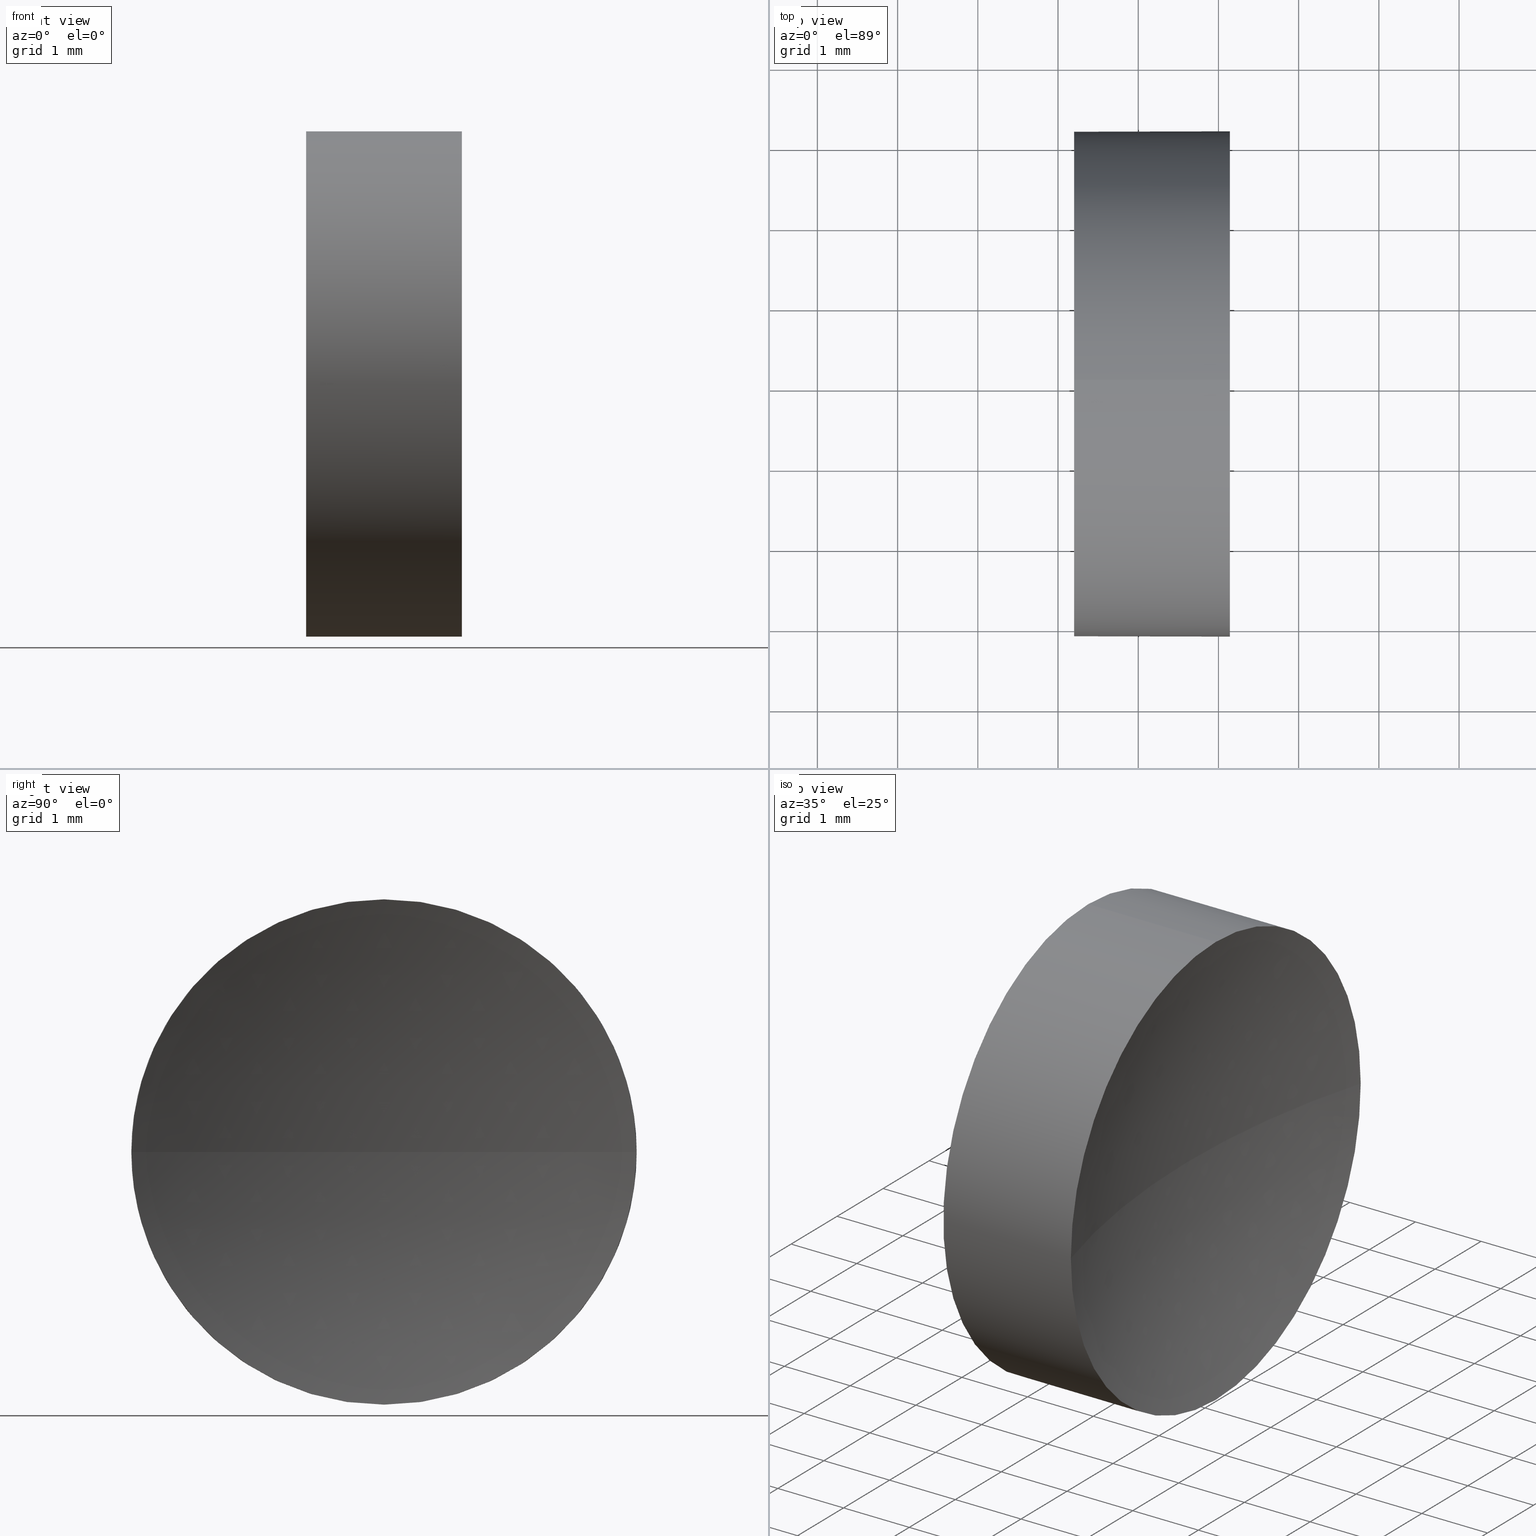
[diagram: canonical four-view strip — front | top / right | iso, engineering-drawing reading convention]
A machine part, canonical four-view strip (front | top / right | iso — engineering-drawing reading convention). The complete STEP part file that produces these views, byte-faithful:
ISO-10303-21;
HEADER;
FILE_DESCRIPTION (( 'STEP AP214' ),
    '1' );
FILE_NAME ('120248.STEP',
    '2019-06-24T06:08:45',
    ( '' ),
    ( '' ),
    'SwSTEP 2.0',
    'SolidWorks 2016',
    '' );
FILE_SCHEMA (( 'AUTOMOTIVE_DESIGN' ));
ENDSEC;

DATA;
#1 = CIRCLE ( 'NONE', #122, 3.149999999999998100 ) ;
#2 = DIRECTION ( 'NONE',  ( 0.0000000000000000000, 0.0000000000000000000, -1.000000000000000000 ) ) ;
#3 = PRODUCT_DEFINITION_CONTEXT ( 'detailed design', #168, 'design' ) ;
#4 = ORIENTED_EDGE ( 'NONE', *, *, #162, .F. ) ;
#5 = DIRECTION ( 'NONE',  ( 0.0000000000000000000, 0.0000000000000000000, 1.000000000000000000 ) ) ;
#6 = AXIS2_PLACEMENT_3D ( 'NONE', #34, #60, #25 ) ;
#7 = DIRECTION ( 'NONE',  ( 0.0000000000000000000, -1.000000000000000000, 0.0000000000000000000 ) ) ;
#8 = UNCERTAINTY_MEASURE_WITH_UNIT (LENGTH_MEASURE( 1.000000000000000100E-005 ), #131, 'distance_accuracy_value', 'NONE');
#9 = VECTOR ( 'NONE', #172, 1000.000000000000000 ) ;
#10 = EDGE_CURVE ( 'NONE', #171, #154, #82, .T. ) ;
#11 = ORIENTED_EDGE ( 'NONE', *, *, #20, .T. ) ;
#12 = EDGE_CURVE ( 'NONE', #88, #78, #30, .T. ) ;
#13 =( NAMED_UNIT ( * ) SI_UNIT ( $, .STERADIAN. ) SOLID_ANGLE_UNIT ( ) );
#14 = ORIENTED_EDGE ( 'NONE', *, *, #37, .T. ) ;
#15 = SURFACE_STYLE_USAGE ( .BOTH. , #115 ) ;
#16 = DIRECTION ( 'NONE',  ( 1.000000000000000000, 0.0000000000000000000, 0.0000000000000000000 ) ) ;
#17 = CARTESIAN_POINT ( 'NONE',  ( 24.14229572597543300, 9.881126091403055900, 0.0000000000000000000 ) ) ;
#18 = DIRECTION ( 'NONE',  ( 0.0000000000000000000, 0.0000000000000000000, 1.000000000000000000 ) ) ;
#19 = DIRECTION ( 'NONE',  ( -1.000000000000000000, -0.0000000000000000000, -0.0000000000000000000 ) ) ;
#20 = EDGE_CURVE ( 'NONE', #55, #78, #56, .T. ) ;
#21 = EDGE_LOOP ( 'NONE', ( #159, #93, #86, #47 ) ) ;
#22 = UNCERTAINTY_MEASURE_WITH_UNIT (LENGTH_MEASURE( 1.000000000000000100E-005 ), #99, 'distance_accuracy_value', 'NONE');
#23 = VERTEX_POINT ( 'NONE', #158 ) ;
#24 = APPLICATION_CONTEXT ( 'automotive_design' ) ;
#25 = DIRECTION ( 'NONE',  ( 0.0000000000000000000, 0.0000000000000000000, 1.000000000000000000 ) ) ;
#26 = DIRECTION ( 'NONE',  ( 0.0000000000000000000, 0.0000000000000000000, 1.000000000000000000 ) ) ;
#27 = CARTESIAN_POINT ( 'NONE',  ( 35.16087548926616100, 13.03112609140305100, 0.0000000000000000000 ) ) ;
#28 =( GEOMETRIC_REPRESENTATION_CONTEXT ( 3 ) GLOBAL_UNCERTAINTY_ASSIGNED_CONTEXT ( ( #111 ) ) GLOBAL_UNIT_ASSIGNED_CONTEXT ( ( #49, #149, #52 ) ) REPRESENTATION_CONTEXT ( 'NONE', 'WORKASPACE' ) );
#29 = DIRECTION ( 'NONE',  ( -1.000000000000000000, -0.0000000000000000000, -0.0000000000000000000 ) ) ;
#30 = CIRCLE ( 'NONE', #45, 11.45999999999999700 ) ;
#31 = CARTESIAN_POINT ( 'NONE',  ( 35.16087548926616100, 13.03112609140305100, 0.0000000000000000000 ) ) ;
#32 = DIRECTION ( 'NONE',  ( -1.000000000000000000, -0.0000000000000000000, -0.0000000000000000000 ) ) ;
#33 = PRESENTATION_STYLE_ASSIGNMENT (( #15 ) ) ;
#34 = CARTESIAN_POINT ( 'NONE',  ( 24.14229572597543000, 13.03112609140304000, 0.0000000000000000000 ) ) ;
#35 = DIRECTION ( 'NONE',  ( 0.0000000000000000000, 0.0000000000000000000, 1.000000000000000000 ) ) ;
#36 = ADVANCED_FACE ( 'NONE', ( #185 ), #180, .F. ) ;
#37 = EDGE_CURVE ( 'NONE', #55, #23, #132, .T. ) ;
#38 = SURFACE_STYLE_FILL_AREA ( #102 ) ;
#39 = STYLED_ITEM ( 'NONE', ( #33 ), #157 ) ;
#40 = AXIS2_PLACEMENT_3D ( 'NONE', #120, #5, #7 ) ;
#41 = ORIENTED_EDGE ( 'NONE', *, *, #10, .F. ) ;
#42 = CARTESIAN_POINT ( 'NONE',  ( 0.0000000000000000000, 0.0000000000000000000, 0.0000000000000000000 ) ) ;
#43 = AXIS2_PLACEMENT_3D ( 'NONE', #91, #65, #94 ) ;
#44 = MANIFOLD_SOLID_BREP ( '��ת1', #126 ) ;
#45 = AXIS2_PLACEMENT_3D ( 'NONE', #31, #2, #76 ) ;
#46 = CARTESIAN_POINT ( 'NONE',  ( 21.15647192244426100, 13.03112609140304000, 3.149999999999998100 ) ) ;
#47 = ORIENTED_EDGE ( 'NONE', *, *, #12, .T. ) ;
#48 = ORIENTED_EDGE ( 'NONE', *, *, #153, .F. ) ;
#49 =( LENGTH_UNIT ( ) NAMED_UNIT ( * ) SI_UNIT ( .MILLI., .METRE. ) );
#50 = CARTESIAN_POINT ( 'NONE',  ( 24.14229572597543000, 13.03112609140304000, 0.0000000000000000000 ) ) ;
#51 =( GEOMETRIC_REPRESENTATION_CONTEXT ( 3 ) GLOBAL_UNCERTAINTY_ASSIGNED_CONTEXT ( ( #22 ) ) GLOBAL_UNIT_ASSIGNED_CONTEXT ( ( #99, #61, #13 ) ) REPRESENTATION_CONTEXT ( 'NONE', 'WORKASPACE' ) );
#52 =( NAMED_UNIT ( * ) SI_UNIT ( $, .STERADIAN. ) SOLID_ANGLE_UNIT ( ) );
#53 = AXIS2_PLACEMENT_3D ( 'NONE', #145, #155, #26 ) ;
#54 = PRODUCT ( '120248', '120248', '', ( #184 ) ) ;
#55 = VERTEX_POINT ( 'NONE', #116 ) ;
#56 = CIRCLE ( 'NONE', #151, 11.45999999999999700 ) ;
#57 = MECHANICAL_DESIGN_GEOMETRIC_PRESENTATION_REPRESENTATION (  '', ( #39 ), #51 ) ;
#58 = AXIS2_PLACEMENT_3D ( 'NONE', #67, #80, #95 ) ;
#59 = DIRECTION ( 'NONE',  ( 0.0000000000000000000, 0.0000000000000000000, 1.000000000000000000 ) ) ;
#60 = DIRECTION ( 'NONE',  ( -1.000000000000000000, -0.0000000000000000000, -0.0000000000000000000 ) ) ;
#61 =( NAMED_UNIT ( * ) PLANE_ANGLE_UNIT ( ) SI_UNIT ( $, .RADIAN. ) );
#62 = CARTESIAN_POINT ( 'NONE',  ( 22.20087548928661300, 13.03112609140304000, 0.0000000000000000000 ) ) ;
#63 = PRESENTATION_LAYER_ASSIGNMENT (  '', '', ( #39 ) ) ;
#64 = EDGE_LOOP ( 'NONE', ( #14, #129, #130, #41, #165 ) ) ;
#65 = DIRECTION ( 'NONE',  ( 0.0000000000000000000, 0.0000000000000000000, 1.000000000000000000 ) ) ;
#66 = DIRECTION ( 'NONE',  ( 0.0000000000000000000, 0.0000000000000000000, 1.000000000000000000 ) ) ;
#67 = CARTESIAN_POINT ( 'NONE',  ( 21.15647192244426100, 13.03112609140304000, 0.0000000000000000000 ) ) ;
#68 = CARTESIAN_POINT ( 'NONE',  ( 23.70087548926616700, 13.03112609140305100, 0.0000000000000000000 ) ) ;
#69 = CYLINDRICAL_SURFACE ( 'NONE', #58, 3.149999999999998100 ) ;
#70 = LINE ( 'NONE', #177, #139 ) ;
#71 = FACE_OUTER_BOUND ( 'NONE', #108, .T. ) ;
#72 = ORIENTED_EDGE ( 'NONE', *, *, #150, .F. ) ;
#73 = FILL_AREA_STYLE ('',( #183 ) ) ;
#74 =( NAMED_UNIT ( * ) PLANE_ANGLE_UNIT ( ) SI_UNIT ( $, .RADIAN. ) );
#75 = DIRECTION ( 'NONE',  ( 0.0000000000000000000, 0.0000000000000000000, 1.000000000000000000 ) ) ;
#76 = DIRECTION ( 'NONE',  ( -1.000000000000000000, 0.0000000000000000000, 0.0000000000000000000 ) ) ;
#77 = FILL_AREA_STYLE_COLOUR ( '', #98 ) ;
#78 = VERTEX_POINT ( 'NONE', #68 ) ;
#79 = ORIENTED_EDGE ( 'NONE', *, *, #10, .T. ) ;
#80 = DIRECTION ( 'NONE',  ( -1.000000000000000000, -0.0000000000000000000, -0.0000000000000000000 ) ) ;
#81 = CYLINDRICAL_SURFACE ( 'NONE', #53, 3.149999999999998100 ) ;
#82 = LINE ( 'NONE', #46, #9 ) ;
#83 = EDGE_LOOP ( 'NONE', ( #124, #11, #118, #72 ) ) ;
#84 = MECHANICAL_DESIGN_GEOMETRIC_PRESENTATION_REPRESENTATION (  '', ( #87 ), #28 ) ;
#85 = CIRCLE ( 'NONE', #112, 3.149999999999998100 ) ;
#86 = ORIENTED_EDGE ( 'NONE', *, *, #163, .F. ) ;
#87 = STYLED_ITEM ( 'NONE', ( #96 ), #44 ) ;
#88 = VERTEX_POINT ( 'NONE', #17 ) ;
#89 = DIRECTION ( 'NONE',  ( 1.000000000000000000, 0.0000000000000000000, 0.0000000000000000000 ) ) ;
#90 = VERTEX_POINT ( 'NONE', #178 ) ;
#91 = CARTESIAN_POINT ( 'NONE',  ( 35.16087548926616100, 13.03112609140305100, 0.0000000000000000000 ) ) ;
#92 = DIRECTION ( 'NONE',  ( 0.0000000000000000000, -1.224646799147353200E-016, 1.000000000000000000 ) ) ;
#93 = ORIENTED_EDGE ( 'NONE', *, *, #144, .F. ) ;
#94 = DIRECTION ( 'NONE',  ( 0.0000000000000000000, -1.000000000000000000, 0.0000000000000000000 ) ) ;
#95 = DIRECTION ( 'NONE',  ( 0.0000000000000000000, 0.0000000000000000000, 1.000000000000000000 ) ) ;
#96 = PRESENTATION_STYLE_ASSIGNMENT (( #105 ) ) ;
#97 = SURFACE_STYLE_FILL_AREA ( #73 ) ;
#98 = COLOUR_RGB ( '',1.000000000000000000, 1.000000000000000000, 1.000000000000000000 ) ;
#99 =( LENGTH_UNIT ( ) NAMED_UNIT ( * ) SI_UNIT ( .MILLI., .METRE. ) );
#100 =( NAMED_UNIT ( * ) SI_UNIT ( $, .STERADIAN. ) SOLID_ANGLE_UNIT ( ) );
#101 = CIRCLE ( 'NONE', #6, 3.149999999999998100 ) ;
#102 = FILL_AREA_STYLE ('',( #77 ) ) ;
#103 = FACE_OUTER_BOUND ( 'NONE', #64, .T. ) ;
#104 = DIRECTION ( 'NONE',  ( -1.000000000000000000, -0.0000000000000000000, -0.0000000000000000000 ) ) ;
#105 = SURFACE_STYLE_USAGE ( .BOTH. , #134 ) ;
#106 = CARTESIAN_POINT ( 'NONE',  ( 22.20087548928661300, 13.03112609140304000, 0.0000000000000000000 ) ) ;
#107 = ADVANCED_FACE ( 'NONE', ( #103 ), #69, .T. ) ;
#108 = EDGE_LOOP ( 'NONE', ( #113, #127 ) ) ;
#109 = ADVANCED_FACE ( 'NONE', ( #140 ), #136, .F. ) ;
#110 = PRODUCT_DEFINITION_SHAPE ( 'NONE', 'NONE',  #146 ) ;
#111 = UNCERTAINTY_MEASURE_WITH_UNIT (LENGTH_MEASURE( 1.000000000000000100E-005 ), #49, 'distance_accuracy_value', 'NONE');
#112 = AXIS2_PLACEMENT_3D ( 'NONE', #174, #104, #18 ) ;
#113 = ORIENTED_EDGE ( 'NONE', *, *, #182, .T. ) ;
#114 = DIRECTION ( 'NONE',  ( 0.0000000000000000000, 0.0000000000000000000, -1.000000000000000000 ) ) ;
#115 = SURFACE_SIDE_STYLE ('',( #97 ) ) ;
#116 = CARTESIAN_POINT ( 'NONE',  ( 24.14229572597543300, 16.18112609140303300, 3.857637417314144400E-016 ) ) ;
#117 = FACE_OUTER_BOUND ( 'NONE', #119, .T. ) ;
#118 = ORIENTED_EDGE ( 'NONE', *, *, #12, .F. ) ;
#119 = EDGE_LOOP ( 'NONE', ( #4, #160, #143, #79, #48 ) ) ;
#120 = CARTESIAN_POINT ( 'NONE',  ( 35.16087548926616100, 13.03112609140305100, 0.0000000000000000000 ) ) ;
#121 = CARTESIAN_POINT ( 'NONE',  ( 24.14229572597543000, 13.03112609140304000, 3.149999999999998100 ) ) ;
#122 = AXIS2_PLACEMENT_3D ( 'NONE', #62, #169, #59 ) ;
#123 = CARTESIAN_POINT ( 'NONE',  ( 22.20087548928661300, 13.03112609140304000, 3.149999999999998100 ) ) ;
#124 = ORIENTED_EDGE ( 'NONE', *, *, #37, .F. ) ;
#125 = AXIS2_PLACEMENT_3D ( 'NONE', #50, #19, #66 ) ;
#126 = CLOSED_SHELL ( 'NONE', ( #107, #36, #109, #179, #164 ) ) ;
#127 = ORIENTED_EDGE ( 'NONE', *, *, #153, .T. ) ;
#128 = AXIS2_PLACEMENT_3D ( 'NONE', #42, #75, #89 ) ;
#129 = ORIENTED_EDGE ( 'NONE', *, *, #162, .T. ) ;
#130 = ORIENTED_EDGE ( 'NONE', *, *, #182, .F. ) ;
#131 =( LENGTH_UNIT ( ) NAMED_UNIT ( * ) SI_UNIT ( .MILLI., .METRE. ) );
#132 = CIRCLE ( 'NONE', #156, 3.149999999999998100 ) ;
#133 = DIRECTION ( 'NONE',  ( 0.0000000000000000000, 0.0000000000000000000, 1.000000000000000000 ) ) ;
#134 = SURFACE_SIDE_STYLE ('',( #38 ) ) ;
#135 = AXIS2_PLACEMENT_3D ( 'NONE', #161, #16, #114 ) ;
#136 = SPHERICAL_SURFACE ( 'NONE', #40, 11.45999999999999700 ) ;
#137 = PLANE ( 'NONE',  #135 ) ;
#138 = DIRECTION ( 'NONE',  ( -1.000000000000000000, -0.0000000000000000000, -0.0000000000000000000 ) ) ;
#139 = VECTOR ( 'NONE', #32, 1000.000000000000000 ) ;
#140 = FACE_OUTER_BOUND ( 'NONE', #21, .T. ) ;
#141 = SHAPE_DEFINITION_REPRESENTATION ( #110, #157 ) ;
#142 =( GEOMETRIC_REPRESENTATION_CONTEXT ( 3 ) GLOBAL_UNCERTAINTY_ASSIGNED_CONTEXT ( ( #8 ) ) GLOBAL_UNIT_ASSIGNED_CONTEXT ( ( #131, #74, #100 ) ) REPRESENTATION_CONTEXT ( 'NONE', 'WORKASPACE' ) );
#143 = ORIENTED_EDGE ( 'NONE', *, *, #163, .T. ) ;
#144 = EDGE_CURVE ( 'NONE', #171, #55, #152, .T. ) ;
#145 = CARTESIAN_POINT ( 'NONE',  ( 21.15647192244426100, 13.03112609140304000, 0.0000000000000000000 ) ) ;
#146 = PRODUCT_DEFINITION ( 'δ֪', '', #170, #3 ) ;
#147 = DIRECTION ( 'NONE',  ( 0.0000000000000000000, -1.000000000000000000, -1.224646799147353200E-016 ) ) ;
#148 = CIRCLE ( 'NONE', #181, 3.149999999999998100 ) ;
#149 =( NAMED_UNIT ( * ) PLANE_ANGLE_UNIT ( ) SI_UNIT ( $, .RADIAN. ) );
#150 = EDGE_CURVE ( 'NONE', #23, #88, #85, .T. ) ;
#151 = AXIS2_PLACEMENT_3D ( 'NONE', #27, #92, #147 ) ;
#152 = CIRCLE ( 'NONE', #125, 3.149999999999998100 ) ;
#153 = EDGE_CURVE ( 'NONE', #90, #154, #148, .T. ) ;
#154 = VERTEX_POINT ( 'NONE', #123 ) ;
#155 = DIRECTION ( 'NONE',  ( -1.000000000000000000, -0.0000000000000000000, -0.0000000000000000000 ) ) ;
#156 = AXIS2_PLACEMENT_3D ( 'NONE', #173, #29, #133 ) ;
#157 = ADVANCED_BREP_SHAPE_REPRESENTATION ( '120248', ( #44, #128 ), #142 ) ;
#158 = CARTESIAN_POINT ( 'NONE',  ( 24.14229572597543000, 13.03112609140304000, -3.149999999999998100 ) ) ;
#159 = ORIENTED_EDGE ( 'NONE', *, *, #20, .F. ) ;
#160 = ORIENTED_EDGE ( 'NONE', *, *, #150, .T. ) ;
#161 = CARTESIAN_POINT ( 'NONE',  ( 22.20087548928661300, 13.03112609140304000, 0.0000000000000000000 ) ) ;
#162 = EDGE_CURVE ( 'NONE', #23, #90, #70, .T. ) ;
#163 = EDGE_CURVE ( 'NONE', #88, #171, #101, .T. ) ;
#164 = ADVANCED_FACE ( 'NONE', ( #71 ), #137, .F. ) ;
#165 = ORIENTED_EDGE ( 'NONE', *, *, #144, .T. ) ;
#166 = APPLICATION_PROTOCOL_DEFINITION ( 'draft international standard', 'automotive_design', 1998, #168 ) ;
#167 = PRESENTATION_LAYER_ASSIGNMENT (  '', '', ( #87 ) ) ;
#168 = APPLICATION_CONTEXT ( 'automotive_design' ) ;
#169 = DIRECTION ( 'NONE',  ( -1.000000000000000000, -0.0000000000000000000, -0.0000000000000000000 ) ) ;
#170 = PRODUCT_DEFINITION_FORMATION_WITH_SPECIFIED_SOURCE ( '�κ�', '', #54, .NOT_KNOWN. ) ;
#171 = VERTEX_POINT ( 'NONE', #121 ) ;
#172 = DIRECTION ( 'NONE',  ( -1.000000000000000000, -0.0000000000000000000, -0.0000000000000000000 ) ) ;
#173 = CARTESIAN_POINT ( 'NONE',  ( 24.14229572597543000, 13.03112609140304000, 0.0000000000000000000 ) ) ;
#174 = CARTESIAN_POINT ( 'NONE',  ( 24.14229572597543000, 13.03112609140304000, 0.0000000000000000000 ) ) ;
#175 = PRODUCT_RELATED_PRODUCT_CATEGORY ( 'part', '', ( #54 ) ) ;
#176 = COLOUR_RGB ( '',1.000000000000000000, 1.000000000000000000, 1.000000000000000000 ) ;
#177 = CARTESIAN_POINT ( 'NONE',  ( 21.15647192244426100, 13.03112609140304000, -3.149999999999998100 ) ) ;
#178 = CARTESIAN_POINT ( 'NONE',  ( 22.20087548928661300, 13.03112609140304000, -3.149999999999998100 ) ) ;
#179 = ADVANCED_FACE ( 'NONE', ( #117 ), #81, .T. ) ;
#180 = SPHERICAL_SURFACE ( 'NONE', #43, 11.45999999999999700 ) ;
#181 = AXIS2_PLACEMENT_3D ( 'NONE', #106, #138, #35 ) ;
#182 = EDGE_CURVE ( 'NONE', #154, #90, #1, .T. ) ;
#183 = FILL_AREA_STYLE_COLOUR ( '', #176 ) ;
#184 = PRODUCT_CONTEXT ( 'NONE', #24, 'mechanical' ) ;
#185 = FACE_OUTER_BOUND ( 'NONE', #83, .T. ) ;
#186 = APPLICATION_PROTOCOL_DEFINITION ( 'draft international standard', 'automotive_design', 1998, #24 ) ;
ENDSEC;
END-ISO-10303-21;
